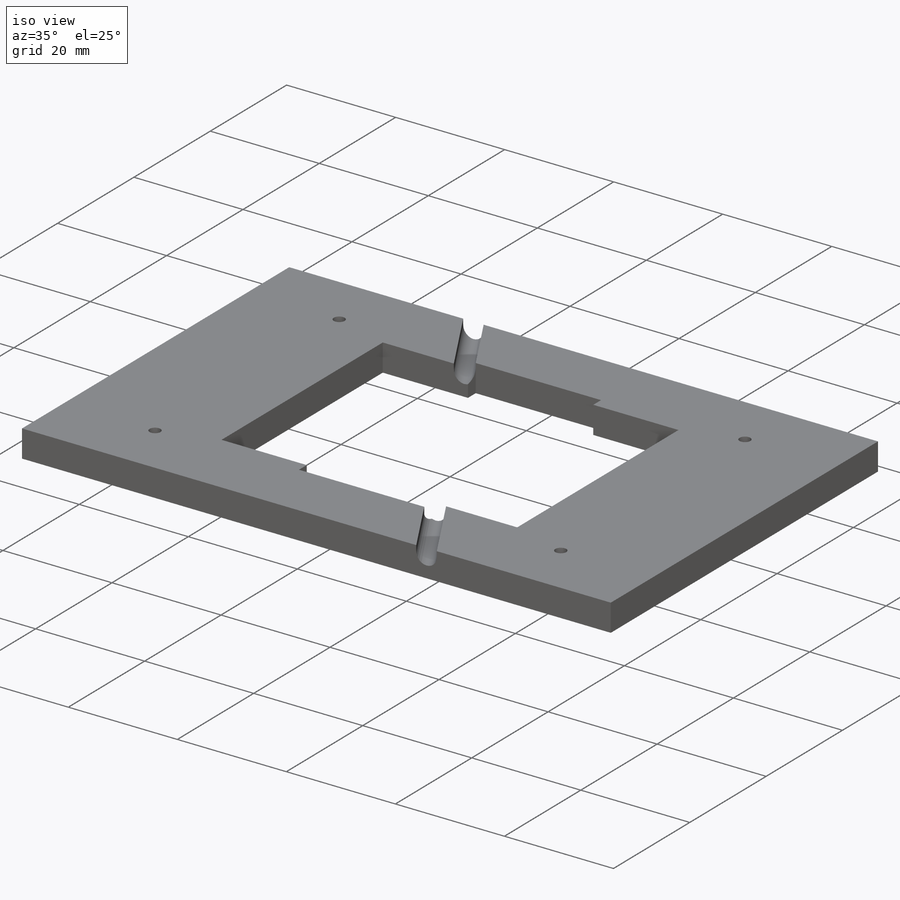
[diagram: iso view]
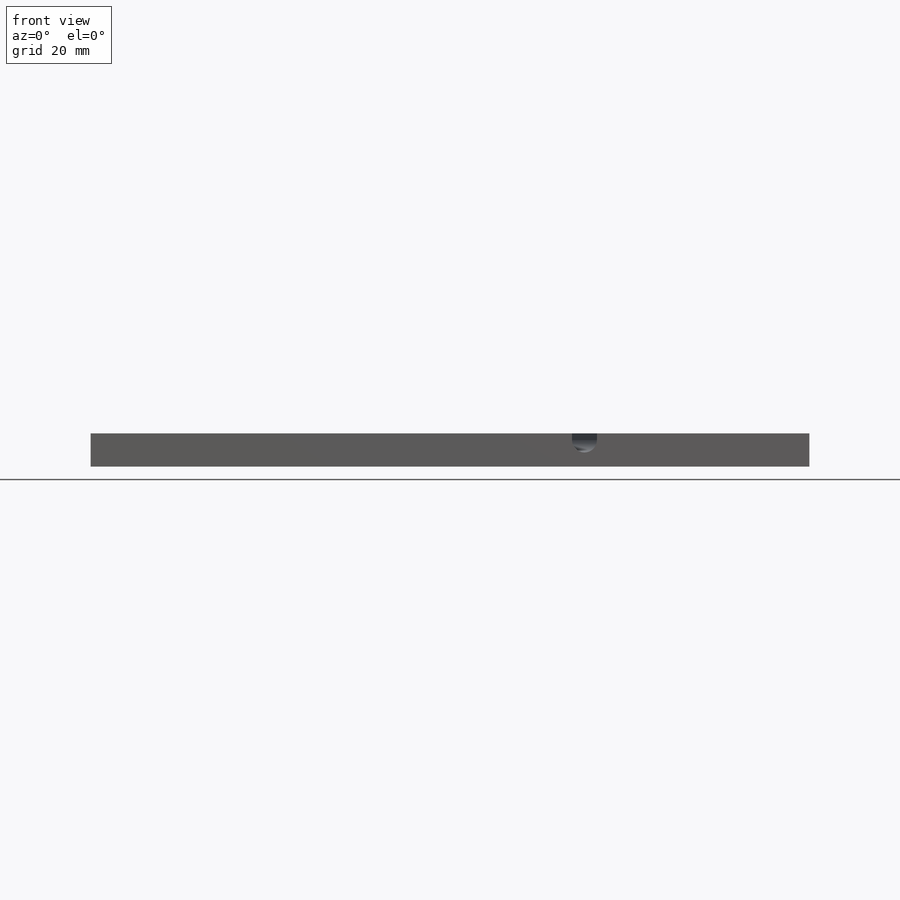
[diagram: front view]
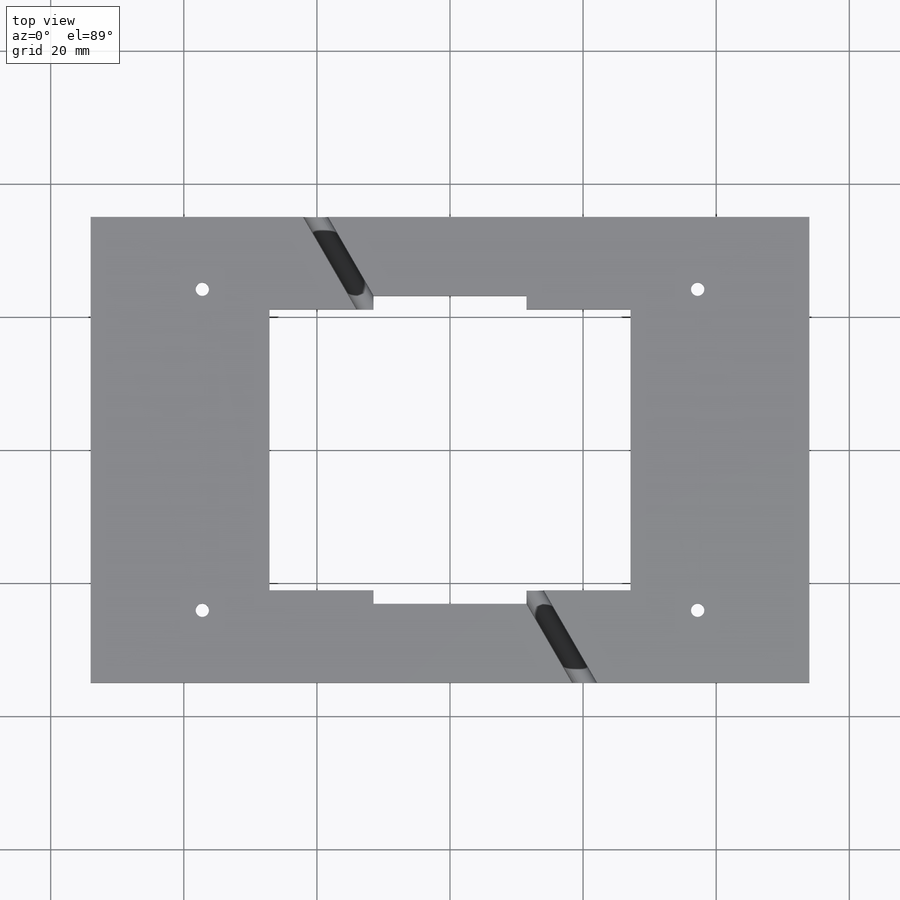
[diagram: top view]
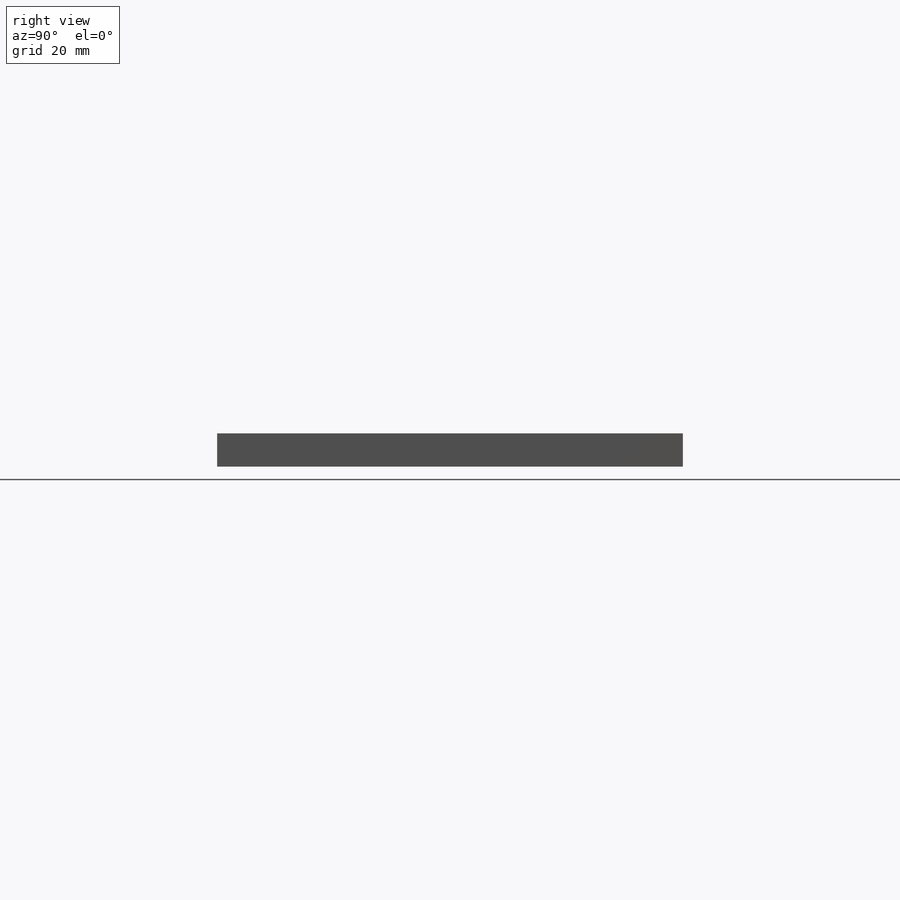
[diagram: right view]
SOLIDWORKS PART (.sldprt)
format: sldprt  version: not decoded by parser v0  size: 379,392 bytes
history: native  units: mm
features: sketch x12, cut_extrude x7, plane x3, extrude x3, material x1 (+8 scaffold rows collapsed)
feature tree (34):
  scaffold x8  (default folders/planes/origin — collapsed)
  material  "Materiale <non specificato>"
  plane  "Piano frontale"
  plane  "Piano superiore"
  plane  "Piano destro"
  sketch  "Schizzo1"  dims[D3=16.25mm D5=16.25mm D6=16.25mm D7=16.25mm D8=3.0mm D9=3.0mm D10=3.0mm D11=3.0mm D12=54.0mm D1=70.0mm D2=108.0mm D4=20.0mm D13=42.0mm]
  extrude  "Estrusione-Estrusione2"  Depth=5mm
  sketch  "Schizzo2"  dims[c1.D1=40.0mm c1.D2=14.0mm c1.D3=64.25mm c2.D1=40.0mm c2.D2=3.76mm c2.D4=3.76mm]
  sketch  "Schizzo5"  dims[D1=1.88mm D2=1.88mm]
  cut_extrude  "Taglio-Estrusione4"  Depth=1mm
  sketch  "Schizzo7"
  sketch  "Schizzo8"
  cut_extrude  "Taglio-Estrusione5"  Depth=95mm
  sketch  "Schizzo9"  dims[D1=54.0mm]
  cut_extrude  "Taglio-Estrusione6"  Depth=10mm
  sketch  "Schizzo10"
  cut_extrude  "Taglio-Estrusione7"  Depth=10mm
  sketch  "Schizzo11"  dims[D1=54.25mm D2=42.25mm]
  cut_extrude  "Taglio-Estrusione8"  Depth=10mm
  sketch  "Schizzo14"
  extrude  "Estrusione-Estrusione3"  Depth=2mm
  sketch  "Schizzo15"
  extrude  "Estrusione-Estrusione4"  Depth=2mm
  sketch  "Schizzo16"  dims[c1.D1=0.5mm c1.D2=1.0mm c1.D3=9.0mm c1.D4=~129.732956mm c2.D4=90.0deg c3.D4=1.5mm]
  cut_extrude  "Taglio-Estrusione10"  Depth=3mm
  sketch  "Schizzo17"  dims[D1=2.0mm D2=2.0mm D3=2.0mm D4=2.0mm]
  cut_extrude  "Taglio-Estrusione11"  Depth=3mm
decode coverage: 17 of 22 modeling features carry decoded parameters
note: ~ marks probable driven/reference dimensions
note: suppression state not decoded; provenance and decode notes live in map.json
